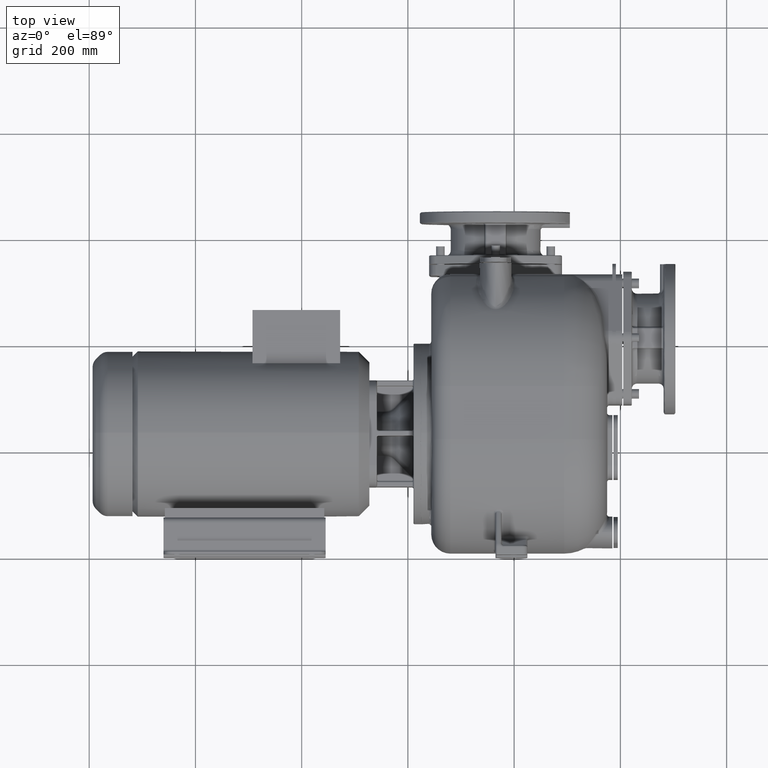
[diagram: clean part render]
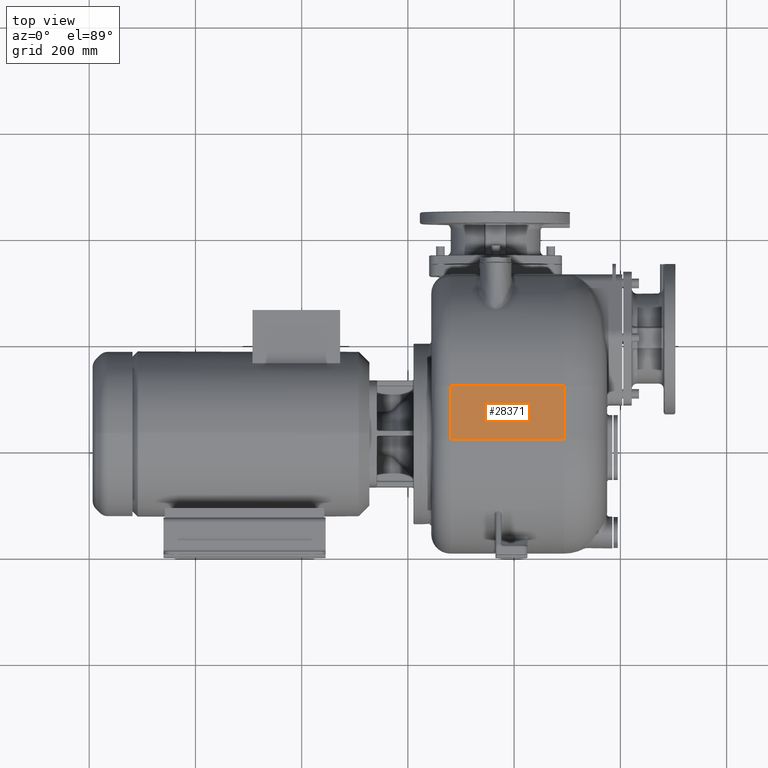
[diagram: same view with one face highlighted and labeled with its STEP entity id]
A machine part, top view. The second image highlights one B-rep face of the part: STEP entity #28371.
In plain terms, the highlighted planar face has unit normal (0, 0, 1).
Its self-contained STEP definition (entity closure, byte-faithful):
#6157=DIRECTION('',(1.E0,7.078865012339E-13,0.E0));
#6158=VECTOR('',#6157,2.14E2);
#6159=CARTESIAN_POINT('',(-1.2E2,3.169999999998E2,1.99E2));
#6160=LINE('',#6159,#6158);
#10617=DIRECTION('',(0.E0,-1.E0,0.E0));
#10618=VECTOR('',#10617,9.999999999948E1);
#10619=CARTESIAN_POINT('',(9.4E1,3.169999999999E2,1.99E2));
#10620=LINE('',#10619,#10618);
#10621=DIRECTION('',(1.E0,2.007847678359E-12,0.E0));
#10622=VECTOR('',#10621,2.14E2);
#10623=CARTESIAN_POINT('',(-1.2E2,2.17E2,1.99E2));
#10624=LINE('',#10623,#10622);
#10625=DIRECTION('',(0.E0,1.E0,0.E0));
#10626=VECTOR('',#10625,9.999999999976E1);
#10627=CARTESIAN_POINT('',(-1.2E2,2.17E2,1.99E2));
#10628=LINE('',#10627,#10626);
#15693=CARTESIAN_POINT('',(-1.2E2,3.169999999998E2,1.99E2));
#15694=CARTESIAN_POINT('',(9.4E1,3.169999999999E2,1.99E2));
#15695=VERTEX_POINT('',#15693);
#15696=VERTEX_POINT('',#15694);
#15757=CARTESIAN_POINT('',(-1.2E2,2.17E2,1.99E2));
#15758=CARTESIAN_POINT('',(9.4E1,2.170000000004E2,1.99E2));
#15759=VERTEX_POINT('',#15757);
#15760=VERTEX_POINT('',#15758);
#28360=CARTESIAN_POINT('',(-1.56E2,2.17E2,1.99E2));
#28361=DIRECTION('',(0.E0,0.E0,1.E0));
#28362=DIRECTION('',(0.E0,1.E0,0.E0));
#28363=AXIS2_PLACEMENT_3D('',#28360,#28361,#28362);
#28364=PLANE('',#28363);
#28365=ORIENTED_EDGE('',*,*,#23686,.T.);
#28366=ORIENTED_EDGE('',*,*,#23485,.T.);
#28367=ORIENTED_EDGE('',*,*,#20137,.F.);
#28368=ORIENTED_EDGE('',*,*,#20025,.T.);
#28369=EDGE_LOOP('',(#28365,#28366,#28367,#28368));
#28370=FACE_OUTER_BOUND('',#28369,.F.);
#28371=ADVANCED_FACE('',(#28370),#28364,.T.);
#20025=EDGE_CURVE('',#15759,#15695,#10628,.T.);
#20137=EDGE_CURVE('',#15759,#15760,#10624,.T.);
#23485=EDGE_CURVE('',#15696,#15760,#10620,.T.);
#23686=EDGE_CURVE('',#15695,#15696,#6160,.T.);